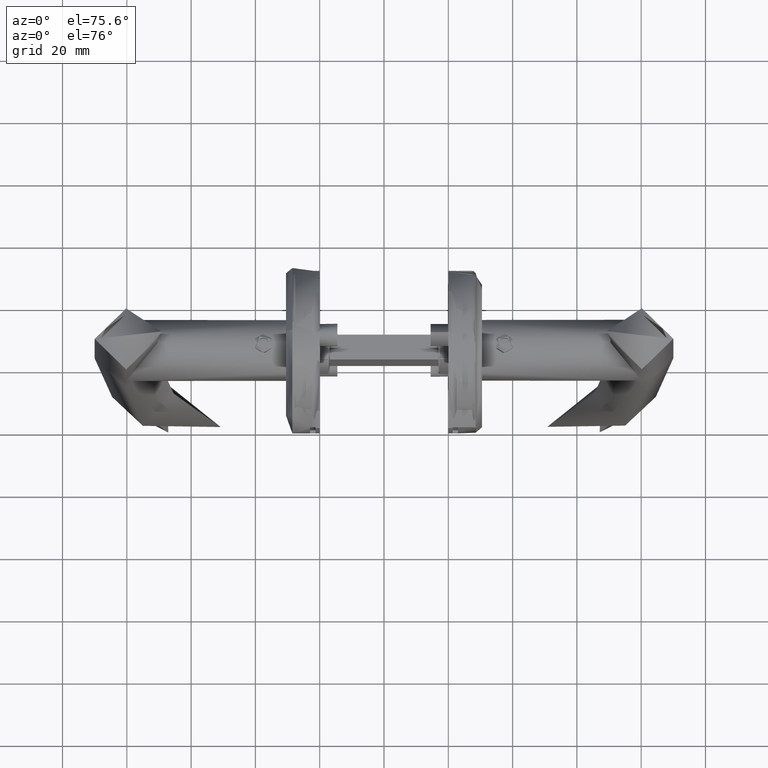
[diagram: clean part render]
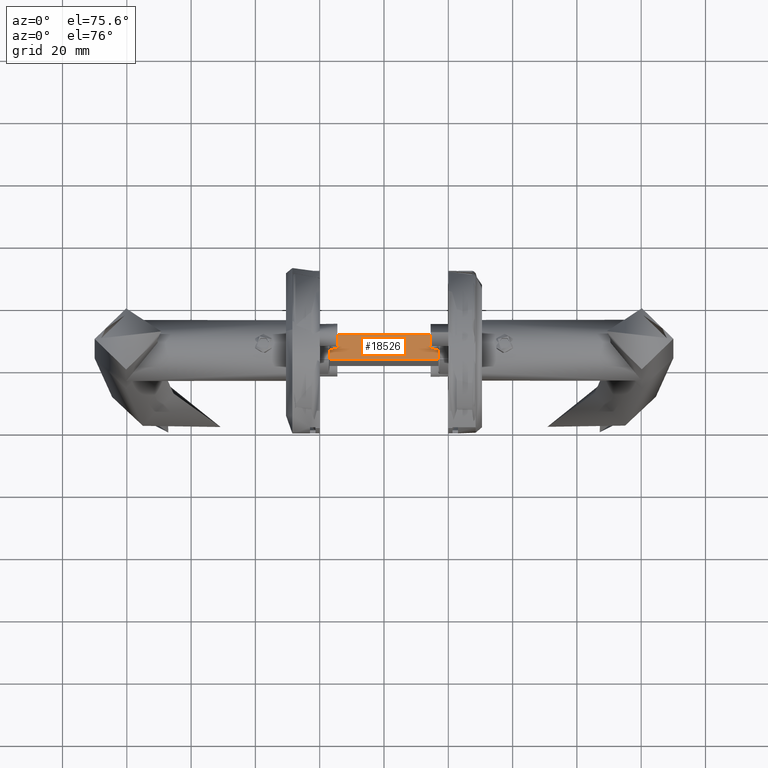
[diagram: same view with one face highlighted and labeled with its STEP entity id]
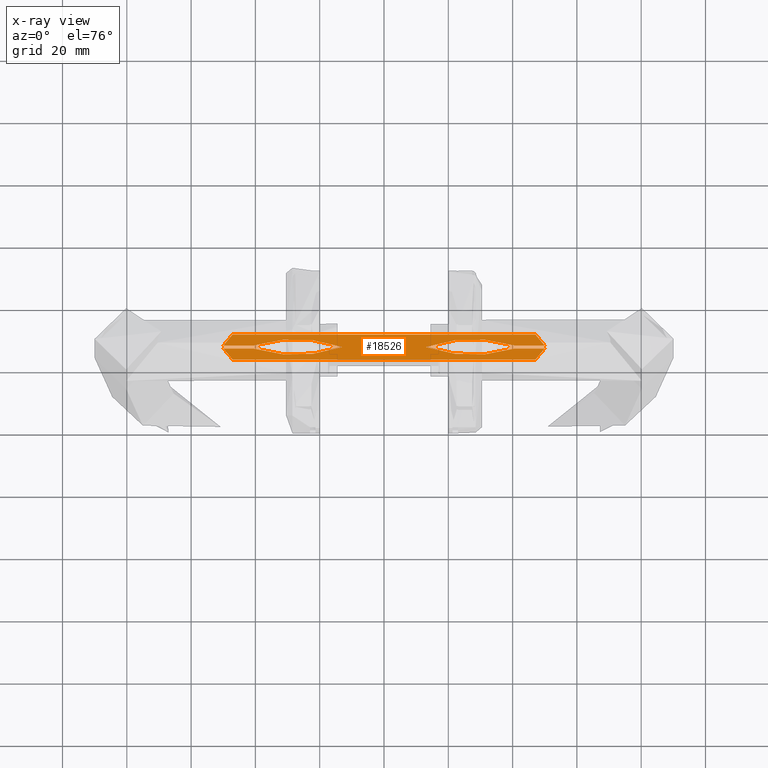
[diagram: x-ray of the same camera — body ghosted, the highlighted face saturated]
A machine part, auxiliary view. The second image highlights one B-rep face of the part: STEP entity #18526.
The next image is the same camera in x-ray: the body ghosted, the highlighted face saturated — about 0% of this face is hidden behind the body in this view.
In plain terms, the highlighted planar face has unit normal (0, -0, -1).
Its self-contained STEP definition (entity closure, byte-faithful):
#38 = AXIS2_PLACEMENT_3D ( 'NONE', #9305, #1529, #3015 ) ;
#167 = CARTESIAN_POINT ( 'NONE',  ( -49.69130312620013300, 4.000000000000000000, -1.219238499982594700 ) ) ;
#507 = VECTOR ( 'NONE', #2945, 1000.000000000000000 ) ;
#545 = EDGE_CURVE ( 'NONE', #14367, #18418, #19476, .T. ) ;
#575 = EDGE_CURVE ( 'NONE', #14367, #15790, #11406, .T. ) ;
#955 = VERTEX_POINT ( 'NONE', #17483 ) ;
#1037 = CARTESIAN_POINT ( 'NONE',  ( -47.13024425914282700, 4.000000000000000000, 4.000000000000000900 ) ) ;
#1092 = CARTESIAN_POINT ( 'NONE',  ( 49.69130312620013300, 4.000000000000000000, -1.219238499982594700 ) ) ;
#1157 = VECTOR ( 'NONE', #4101, 1000.000000000000000 ) ;
#1158 = CARTESIAN_POINT ( 'NONE',  ( 49.84508967912714900, 4.000000000000000900, -0.8674487538398285600 ) ) ;
#1166 = EDGE_CURVE ( 'NONE', #10131, #18571, #8770, .T. ) ;
#1285 = VERTEX_POINT ( 'NONE', #11893 ) ;
#1294 = CARTESIAN_POINT ( 'NONE',  ( 47.42517794647292800, 4.000000000000000000, -3.759187652694568000 ) ) ;
#1313 = CARTESIAN_POINT ( 'NONE',  ( 49.28336925612992300, 4.000000000000000000, 1.870601094989605700 ) ) ;
#1529 = DIRECTION ( 'NONE',  ( 0.0000000000000000000, -1.000000000000000000, 0.0000000000000000000 ) ) ;
#1620 = VERTEX_POINT ( 'NONE', #9656 ) ;
#1636 = AXIS2_PLACEMENT_3D ( 'NONE', #15309, #15980, #2409 ) ;
#1674 = CARTESIAN_POINT ( 'NONE',  ( -47.13024425914282700, 4.000000000000000000, 4.000000000000000900 ) ) ;
#1683 = CARTESIAN_POINT ( 'NONE',  ( -49.29671416510019100, 3.999999999999999100, -1.871949771919015700 ) ) ;
#2141 = ORIENTED_EDGE ( 'NONE', *, *, #13337, .T. ) ;
#2362 = CARTESIAN_POINT ( 'NONE',  ( 50.00000000000000000, 4.000000000000000000, 4.000000000000000900 ) ) ;
#2409 = DIRECTION ( 'NONE',  ( 0.0000000000000000000, 0.0000000000000000000, -1.000000000000000000 ) ) ;
#2472 = DIRECTION ( 'NONE',  ( 2.644151256685202100E-015, 0.0000000000000000000, -1.000000000000000000 ) ) ;
#2707 = CARTESIAN_POINT ( 'NONE',  ( 49.94608320839103000, 4.000000000000000000, -0.5000000000000000000 ) ) ;
#2945 = DIRECTION ( 'NONE',  ( -1.000000000000000000, 0.0000000000000000000, 0.0000000000000000000 ) ) ;
#2982 = CARTESIAN_POINT ( 'NONE',  ( 47.13024425914282700, 4.000000000000000000, 4.000000000000000900 ) ) ;
#3009 = CARTESIAN_POINT ( 'NONE',  ( -27.50000000000000400, 4.000000000000000000, -40.80000000000000400 ) ) ;
#3015 = DIRECTION ( 'NONE',  ( 0.0000000000000000000, 0.0000000000000000000, -1.000000000000000000 ) ) ;
#3226 = CARTESIAN_POINT ( 'NONE',  ( -47.42517794647292800, 4.000000000000000000, -3.759187652694568000 ) ) ;
#3339 = DIRECTION ( 'NONE',  ( -2.644151256685202100E-015, 0.0000000000000000000, -1.000000000000000000 ) ) ;
#3787 = VECTOR ( 'NONE', #5758, 1000.000000000000000 ) ;
#4101 = DIRECTION ( 'NONE',  ( -1.000000000000000000, -0.0000000000000000000, -0.0000000000000000000 ) ) ;
#4217 = EDGE_CURVE ( 'NONE', #11272, #19095, #4971, .T. ) ;
#4223 = VERTEX_POINT ( 'NONE', #7394 ) ;
#4235 = FACE_OUTER_BOUND ( 'NONE', #13926, .T. ) ;
#4445 = CARTESIAN_POINT ( 'NONE',  ( 47.42497717149497300, 4.000000000000000000, 3.759351584777602500 ) ) ;
#4971 = B_SPLINE_CURVE_WITH_KNOTS ( 'NONE', 3,
 ( #19294, #1294, #14736, #10252, #8666, #19233, #10181, #13205, #1092, #1158, #11734, #2707 ),
 .UNSPECIFIED., .F., .F.,
 ( 4, 2, 2, 2, 2, 4 ),
 ( 0.007474777883376140600, 0.008613877223445800700, 0.009752976563515461700, 0.01089207590358512300, 0.01146162557361995300, 0.01203117524365478400 ),
 .UNSPECIFIED. ) ;
#5272 = LINE ( 'NONE', #16305, #18753 ) ;
#5377 = ORIENTED_EDGE ( 'NONE', *, *, #1166, .F. ) ;
#5426 = CARTESIAN_POINT ( 'NONE',  ( -49.84344141390742100, 4.000000000000000000, 0.8717186231594026300 ) ) ;
#5479 = DIRECTION ( 'NONE',  ( -1.000000000000000000, -0.0000000000000000000, -0.0000000000000000000 ) ) ;
#5524 = CARTESIAN_POINT ( 'NONE',  ( -13.00000000000000200, 4.000000000000000000, 0.0000000000000000000 ) ) ;
#5539 = EDGE_CURVE ( 'NONE', #18571, #18232, #13690, .T. ) ;
#5758 = DIRECTION ( 'NONE',  ( 1.000000000000000000, -0.0000000000000000000, -0.0000000000000000000 ) ) ;
#5842 = CARTESIAN_POINT ( 'NONE',  ( 49.94608320839103000, 4.000000000000000000, 0.5000000000000000000 ) ) ;
#6467 = ORIENTED_EDGE ( 'NONE', *, *, #7089, .F. ) ;
#6862 = DIRECTION ( 'NONE',  ( 0.0000000000000000000, -0.0000000000000000000, -1.000000000000000000 ) ) ;
#6963 = CARTESIAN_POINT ( 'NONE',  ( -49.90589018067765200, 4.000000000000000000, 0.6870883623585721800 ) ) ;
#7026 = CARTESIAN_POINT ( 'NONE',  ( -49.39559898249000000, 4.000000000000000000, 1.713556887356181100 ) ) ;
#7089 = EDGE_CURVE ( 'NONE', #955, #10131, #8249, .T. ) ;
#7111 = CARTESIAN_POINT ( 'NONE',  ( 27.50000000000000400, 4.000000000000000000, -40.80000000000000400 ) ) ;
#7394 = CARTESIAN_POINT ( 'NONE',  ( -47.13024425914282700, 4.000000000000000000, -4.000000000000000900 ) ) ;
#7421 = CARTESIAN_POINT ( 'NONE',  ( 49.69013768009961800, 4.000000000000000000, 1.221395784593001700 ) ) ;
#7596 = VERTEX_POINT ( 'NONE', #12665 ) ;
#7656 = CARTESIAN_POINT ( 'NONE',  ( -49.94608320839103000, 4.000000000000000000, -0.5000000000000000000 ) ) ;
#7719 = CARTESIAN_POINT ( 'NONE',  ( -49.84508967912714900, 4.000000000000000900, -0.8674487538398285600 ) ) ;
#8123 = CIRCLE ( 'NONE', #14757, 43.30000000000000400 ) ;
#8249 = LINE ( 'NONE', #10156, #16760 ) ;
#8433 = DIRECTION ( 'NONE',  ( -0.0000000000000000000, 1.000000000000000000, -0.0000000000000000000 ) ) ;
#8666 = CARTESIAN_POINT ( 'NONE',  ( 48.54554660137750900, 4.000000000000000000, -2.735054727870641900 ) ) ;
#8682 = AXIS2_PLACEMENT_3D ( 'NONE', #15917, #11441, #6862 ) ;
#8770 = B_SPLINE_CURVE_WITH_KNOTS ( 'NONE', 3,
 ( #5842, #19510, #16551, #7421, #19575, #10509, #1313, #14828, #9018, #17874, #8832, #13477, #4445, #2982 ),
 .UNSPECIFIED., .F., .F.,
 ( 4, 2, 2, 2, 2, 2, 4 ),
 ( 0.01303433015855684500, 0.01360650189221872600, 0.01417867362588060700, 0.01475084535954248800, 0.01532301709320436900, 0.01646736056052814900, 0.01761170402785192400 ),
 .UNSPECIFIED. ) ;
#8832 = CARTESIAN_POINT ( 'NONE',  ( 48.27318858901782100, 4.000000000000000000, 3.001511602109515800 ) ) ;
#9018 = CARTESIAN_POINT ( 'NONE',  ( 48.92551248200148700, 4.000000000000000900, 2.315599586085804100 ) ) ;
#9026 = EDGE_CURVE ( 'NONE', #1620, #1285, #15504, .T. ) ;
#9101 = VERTEX_POINT ( 'NONE', #14972 ) ;
#9163 = CARTESIAN_POINT ( 'NONE',  ( -40.50769003320729000, 4.000000000000038200, -0.5000000000000000000 ) ) ;
#9228 = B_SPLINE_CURVE_WITH_KNOTS ( 'NONE', 3,
 ( #13727, #3226, #16721, #13850, #15388, #15453, #1683, #10621, #167, #7719, #10747, #7656 ),
 .UNSPECIFIED., .F., .F.,
 ( 4, 2, 2, 2, 2, 4 ),
 ( 0.007474777883376140600, 0.008613877223445800700, 0.009752976563515461700, 0.01089207590358512300, 0.01146162557361995300, 0.01203117524365478400 ),
 .UNSPECIFIED. ) ;
#9305 = CARTESIAN_POINT ( 'NONE',  ( -27.50000000000000400, 4.000000000000000000, 40.80000000000000400 ) ) ;
#9656 = CARTESIAN_POINT ( 'NONE',  ( 40.50769003320729000, 4.000000000000038200, -0.5000000000000000000 ) ) ;
#9927 = CARTESIAN_POINT ( 'NONE',  ( -49.04865619351031800, 4.000000000000000900, 2.171114950286581600 ) ) ;
#10021 = PLANE ( 'NONE',  #8682 ) ;
#10061 = CARTESIAN_POINT ( 'NONE',  ( -48.27318858901782100, 4.000000000000000000, 3.001511602109515800 ) ) ;
#10131 = VERTEX_POINT ( 'NONE', #11772 ) ;
#10156 = CARTESIAN_POINT ( 'NONE',  ( 24.00000000000000400, 4.000000000000000000, 0.5000000000000000000 ) ) ;
#10181 = CARTESIAN_POINT ( 'NONE',  ( 49.29671416510019100, 3.999999999999999100, -1.871949771919015700 ) ) ;
#10252 = CARTESIAN_POINT ( 'NONE',  ( 48.27455430970620400, 3.999999999999999100, -3.000219386976207900 ) ) ;
#10312 = ORIENTED_EDGE ( 'NONE', *, *, #575, .F. ) ;
#10509 = CARTESIAN_POINT ( 'NONE',  ( 49.39559898249000000, 4.000000000000000000, 1.713556887356181100 ) ) ;
#10621 = CARTESIAN_POINT ( 'NONE',  ( -49.60009799105603900, 4.000000000000000900, -1.386766865836274200 ) ) ;
#10722 = CARTESIAN_POINT ( 'NONE',  ( 49.94608320839103000, 4.000000000000000000, -0.5000000000000000000 ) ) ;
#10747 = CARTESIAN_POINT ( 'NONE',  ( -49.90614760147807500, 4.000000000000000900, -0.6858901337429054200 ) ) ;
#10900 = ORIENTED_EDGE ( 'NONE', *, *, #16467, .T. ) ;
#10935 = CARTESIAN_POINT ( 'NONE',  ( -49.94608320839103000, 4.000000000000000000, -0.5000000000000000000 ) ) ;
#11143 = CIRCLE ( 'NONE', #18499, 43.30000000000000400 ) ;
#11272 = VERTEX_POINT ( 'NONE', #11545 ) ;
#11406 = LINE ( 'NONE', #19606, #507 ) ;
#11441 = DIRECTION ( 'NONE',  ( 0.0000000000000000000, -1.000000000000000000, 0.0000000000000000000 ) ) ;
#11528 = EDGE_CURVE ( 'NONE', #4223, #15790, #9228, .T. ) ;
#11545 = CARTESIAN_POINT ( 'NONE',  ( 47.13024425914282700, 4.000000000000000000, -4.000000000000000900 ) ) ;
#11734 = CARTESIAN_POINT ( 'NONE',  ( 49.90614760147807500, 4.000000000000000900, -0.6858901337429054200 ) ) ;
#11738 = ORIENTED_EDGE ( 'NONE', *, *, #4217, .F. ) ;
#11772 = CARTESIAN_POINT ( 'NONE',  ( 49.94608320839103000, 4.000000000000000000, 0.5000000000000000000 ) ) ;
#11893 = CARTESIAN_POINT ( 'NONE',  ( 13.00000000000000200, 4.000000000000000000, 0.0000000000000000000 ) ) ;
#12347 = EDGE_CURVE ( 'NONE', #18418, #7596, #8123, .T. ) ;
#12545 = EDGE_CURVE ( 'NONE', #1285, #955, #11143, .T. ) ;
#12665 = CARTESIAN_POINT ( 'NONE',  ( -40.50769003320727500, 3.999999999999956900, 0.5000000000000000000 ) ) ;
#12710 = B_SPLINE_CURVE_WITH_KNOTS ( 'NONE', 3,
 ( #19247, #6963, #5426, #13084, #16215, #7026, #19179, #9927, #17591, #14418, #10061, #13147, #14487, #1037 ),
 .UNSPECIFIED., .F., .F.,
 ( 4, 2, 2, 2, 2, 2, 4 ),
 ( 0.01303433015855684500, 0.01360650189221872600, 0.01417867362588060700, 0.01475084535954248800, 0.01532301709320436900, 0.01646736056052814900, 0.01761170402785192400 ),
 .UNSPECIFIED. ) ;
#12757 = EDGE_CURVE ( 'NONE', #7596, #9101, #5272, .T. ) ;
#12991 = ORIENTED_EDGE ( 'NONE', *, *, #12545, .F. ) ;
#13084 = CARTESIAN_POINT ( 'NONE',  ( -49.69013768009961800, 4.000000000000000000, 1.221395784593001700 ) ) ;
#13147 = CARTESIAN_POINT ( 'NONE',  ( -47.71389373228705500, 4.000000000000000900, 3.512901781392399900 ) ) ;
#13205 = CARTESIAN_POINT ( 'NONE',  ( 49.60009799105603900, 4.000000000000000900, -1.386766865836274200 ) ) ;
#13337 = EDGE_CURVE ( 'NONE', #9101, #18232, #12710, .T. ) ;
#13477 = CARTESIAN_POINT ( 'NONE',  ( 47.71389373228705500, 4.000000000000000900, 3.512901781392399900 ) ) ;
#13565 = DIRECTION ( 'NONE',  ( 0.0000000000000000000, -1.000000000000000000, 0.0000000000000000000 ) ) ;
#13690 = LINE ( 'NONE', #2362, #19145 ) ;
#13727 = CARTESIAN_POINT ( 'NONE',  ( -47.13024425914282700, 4.000000000000000000, -4.000000000000000900 ) ) ;
#13850 = CARTESIAN_POINT ( 'NONE',  ( -48.27455430970620400, 3.999999999999999100, -3.000219386976207900 ) ) ;
#13926 = EDGE_LOOP ( 'NONE', ( #12991, #18676, #10900, #11738, #17387, #17497, #10312, #19621, #18597, #18901, #2141, #18315, #5377, #6467 ) ) ;
#14367 = VERTEX_POINT ( 'NONE', #9163 ) ;
#14418 = CARTESIAN_POINT ( 'NONE',  ( -48.54379136690895500, 4.000000000000000000, 2.736795130652313700 ) ) ;
#14448 = CARTESIAN_POINT ( 'NONE',  ( 47.13024425914282700, 4.000000000000000000, 4.000000000000000900 ) ) ;
#14487 = CARTESIAN_POINT ( 'NONE',  ( -47.42497717149497300, 4.000000000000000000, 3.759351584777602500 ) ) ;
#14736 = CARTESIAN_POINT ( 'NONE',  ( 47.71453540935696900, 4.000000000000000000, -3.512358380714377700 ) ) ;
#14757 = AXIS2_PLACEMENT_3D ( 'NONE', #3009, #13565, #3339 ) ;
#14828 = CARTESIAN_POINT ( 'NONE',  ( 49.04865619351031800, 4.000000000000000900, 2.171114950286581600 ) ) ;
#14833 = DIRECTION ( 'NONE',  ( -1.000000000000000000, 0.0000000000000000000, 0.0000000000000000000 ) ) ;
#14972 = CARTESIAN_POINT ( 'NONE',  ( -49.94608320839103000, 4.000000000000000000, 0.5000000000000000000 ) ) ;
#15309 = CARTESIAN_POINT ( 'NONE',  ( 27.50000000000000400, 4.000000000000000000, 40.80000000000000400 ) ) ;
#15388 = CARTESIAN_POINT ( 'NONE',  ( -48.54554660137750900, 4.000000000000000000, -2.735054727870641900 ) ) ;
#15453 = CARTESIAN_POINT ( 'NONE',  ( -49.05528916287706700, 4.000000000000000900, -2.172204475333413800 ) ) ;
#15504 = CIRCLE ( 'NONE', #1636, 43.30000000000000400 ) ;
#15790 = VERTEX_POINT ( 'NONE', #10935 ) ;
#15867 = LINE ( 'NONE', #19295, #1157 ) ;
#15917 = CARTESIAN_POINT ( 'NONE',  ( 50.00000000000000000, 4.000000000000000000, 4.000000000000000900 ) ) ;
#15980 = DIRECTION ( 'NONE',  ( -0.0000000000000000000, 1.000000000000000000, -0.0000000000000000000 ) ) ;
#16215 = CARTESIAN_POINT ( 'NONE',  ( -49.59890182244215100, 4.000000000000000000, 1.388928122897741700 ) ) ;
#16305 = CARTESIAN_POINT ( 'NONE',  ( -24.00000000000000400, 4.000000000000000000, 0.5000000000000000000 ) ) ;
#16467 = EDGE_CURVE ( 'NONE', #1620, #19095, #16797, .T. ) ;
#16492 = EDGE_CURVE ( 'NONE', #11272, #4223, #15867, .T. ) ;
#16551 = CARTESIAN_POINT ( 'NONE',  ( 49.84344141390742100, 4.000000000000000000, 0.8717186231594026300 ) ) ;
#16721 = CARTESIAN_POINT ( 'NONE',  ( -47.71453540935696900, 4.000000000000000000, -3.512358380714377700 ) ) ;
#16760 = VECTOR ( 'NONE', #19271, 1000.000000000000000 ) ;
#16797 = LINE ( 'NONE', #17579, #3787 ) ;
#17387 = ORIENTED_EDGE ( 'NONE', *, *, #16492, .T. ) ;
#17483 = CARTESIAN_POINT ( 'NONE',  ( 40.50769003320727500, 3.999999999999956900, 0.5000000000000000000 ) ) ;
#17497 = ORIENTED_EDGE ( 'NONE', *, *, #11528, .T. ) ;
#17579 = CARTESIAN_POINT ( 'NONE',  ( 24.00000000000000400, 4.000000000000000000, -0.5000000000000000000 ) ) ;
#17591 = CARTESIAN_POINT ( 'NONE',  ( -48.92551248200148700, 4.000000000000000900, 2.315599586085804100 ) ) ;
#17874 = CARTESIAN_POINT ( 'NONE',  ( 48.54379136690895500, 4.000000000000000000, 2.736795130652313700 ) ) ;
#18232 = VERTEX_POINT ( 'NONE', #1674 ) ;
#18315 = ORIENTED_EDGE ( 'NONE', *, *, #5539, .F. ) ;
#18418 = VERTEX_POINT ( 'NONE', #5524 ) ;
#18499 = AXIS2_PLACEMENT_3D ( 'NONE', #7111, #8433, #2472 ) ;
#18526 = ADVANCED_FACE ( 'NONE', ( #4235 ), #10021, .F. ) ;
#18571 = VERTEX_POINT ( 'NONE', #14448 ) ;
#18597 = ORIENTED_EDGE ( 'NONE', *, *, #12347, .T. ) ;
#18676 = ORIENTED_EDGE ( 'NONE', *, *, #9026, .F. ) ;
#18753 = VECTOR ( 'NONE', #14833, 1000.000000000000000 ) ;
#18901 = ORIENTED_EDGE ( 'NONE', *, *, #12757, .T. ) ;
#19095 = VERTEX_POINT ( 'NONE', #10722 ) ;
#19145 = VECTOR ( 'NONE', #5479, 1000.000000000000000 ) ;
#19179 = CARTESIAN_POINT ( 'NONE',  ( -49.28336925612992300, 4.000000000000000000, 1.870601094989605700 ) ) ;
#19233 = CARTESIAN_POINT ( 'NONE',  ( 49.05528916287706700, 4.000000000000000900, -2.172204475333413800 ) ) ;
#19247 = CARTESIAN_POINT ( 'NONE',  ( -49.94608320839103000, 4.000000000000000000, 0.5000000000000000000 ) ) ;
#19271 = DIRECTION ( 'NONE',  ( 1.000000000000000000, -0.0000000000000000000, -0.0000000000000000000 ) ) ;
#19294 = CARTESIAN_POINT ( 'NONE',  ( 47.13024425914282700, 4.000000000000000000, -4.000000000000000900 ) ) ;
#19295 = CARTESIAN_POINT ( 'NONE',  ( 50.00000000000000000, 4.000000000000000000, -4.000000000000000000 ) ) ;
#19476 = CIRCLE ( 'NONE', #38, 43.30000000000000400 ) ;
#19510 = CARTESIAN_POINT ( 'NONE',  ( 49.90589018067765200, 4.000000000000000000, 0.6870883623585721800 ) ) ;
#19575 = CARTESIAN_POINT ( 'NONE',  ( 49.59890182244215100, 4.000000000000000000, 1.388928122897741700 ) ) ;
#19606 = CARTESIAN_POINT ( 'NONE',  ( -24.00000000000000400, 4.000000000000000000, -0.5000000000000000000 ) ) ;
#19621 = ORIENTED_EDGE ( 'NONE', *, *, #545, .T. ) ;